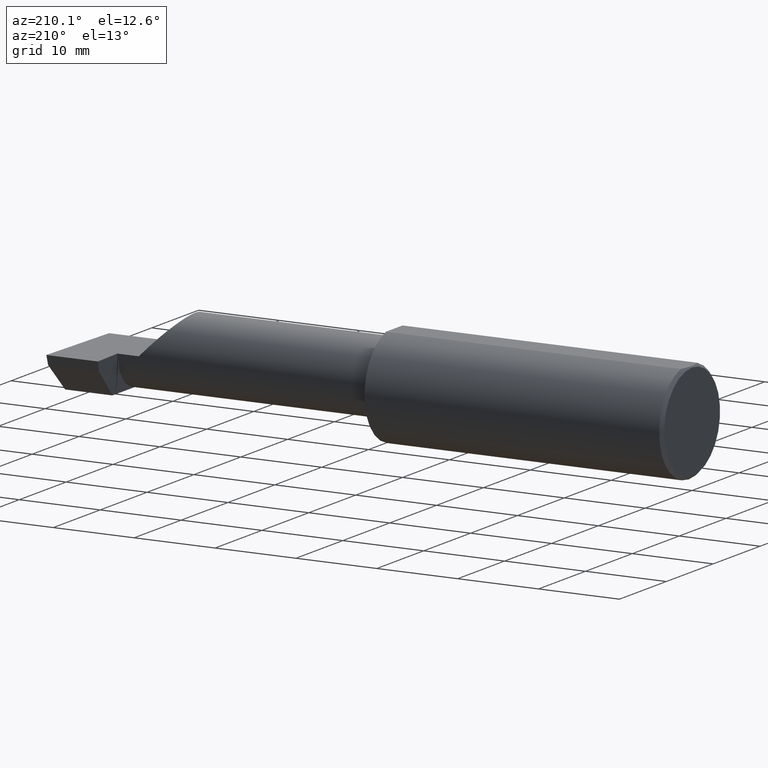
[diagram: clean part render]
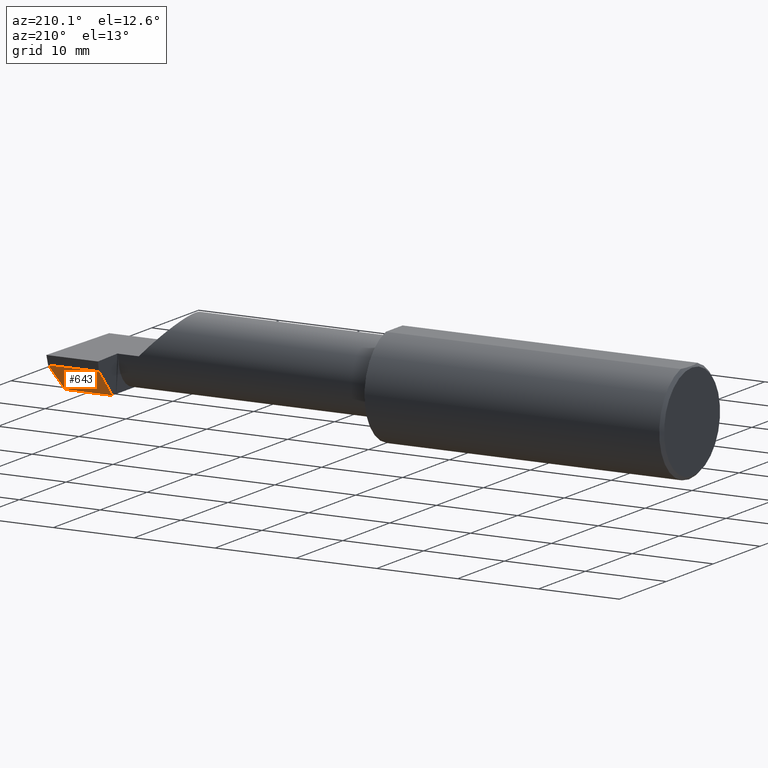
[diagram: same view with one face highlighted and labeled with its STEP entity id]
A machine part, auxiliary view. The second image highlights one B-rep face of the part: STEP entity #643.
In plain terms, the highlighted planar face has unit normal (0, -0.7071, 0.7071).
Its self-contained STEP definition (entity closure, byte-faithful):
#10 = EDGE_CURVE ( 'NONE', #555, #766, #223, .T. ) ;
#45 = CARTESIAN_POINT ( 'NONE',  ( 3.000000000000000444, 0.1058243371481678713, -0.1750000000000000167 ) ) ;
#95 = VERTEX_POINT ( 'NONE', #797 ) ;
#124 = CARTESIAN_POINT ( 'NONE',  ( 2.725000000000000089, 0.2348243371481683328, -0.04599999999999999922 ) ) ;
#130 = VECTOR ( 'NONE', #426, 39.37007874015748854 ) ;
#138 = EDGE_CURVE ( 'NONE', #766, #95, #188, .T. ) ;
#155 = LINE ( 'NONE', #591, #772 ) ;
#172 = CARTESIAN_POINT ( 'NONE',  ( 2.725000000000000089, 0.2348243371481683328, -0.04599999999999999922 ) ) ;
#183 = PLANE ( 'NONE',  #747 ) ;
#188 = LINE ( 'NONE', #730, #130 ) ;
#223 = LINE ( 'NONE', #172, #611 ) ;
#236 = CARTESIAN_POINT ( 'NONE',  ( 2.751037492458068279, 0.2348243371481683328, -0.04599999999999999922 ) ) ;
#249 = FACE_OUTER_BOUND ( 'NONE', #277, .T. ) ;
#268 = ORIENTED_EDGE ( 'NONE', *, *, #414, .F. ) ;
#270 = CARTESIAN_POINT ( 'NONE',  ( 2.760047045968828883, 0.1058243371481679407, -0.1749999999999999889 ) ) ;
#277 = EDGE_LOOP ( 'NONE', ( #441, #385, #268, #335 ) ) ;
#280 = VERTEX_POINT ( 'NONE', #270 ) ;
#335 = ORIENTED_EDGE ( 'NONE', *, *, #401, .T. ) ;
#379 = DIRECTION ( 'NONE',  ( 0.000000000000000000, -0.7071067811865486830, -0.7071067811865463515 ) ) ;
#385 = ORIENTED_EDGE ( 'NONE', *, *, #138, .T. ) ;
#401 = EDGE_CURVE ( 'NONE', #280, #555, #155, .T. ) ;
#414 = EDGE_CURVE ( 'NONE', #280, #95, #647, .T. ) ;
#426 = DIRECTION ( 'NONE',  ( -0.04317993108637931121, -0.7064472710512011977, -0.7064472710511988662 ) ) ;
#441 = ORIENTED_EDGE ( 'NONE', *, *, #10, .T. ) ;
#466 = DIRECTION ( 'NONE',  ( 1.000000000000000000, -0.000000000000000000, -0.000000000000000000 ) ) ;
#529 = VECTOR ( 'NONE', #636, 39.37007874015748143 ) ;
#555 = VERTEX_POINT ( 'NONE', #236 ) ;
#591 = CARTESIAN_POINT ( 'NONE',  ( 2.750974143662802796, 0.2357313737265644971, -0.04509296342160385579 ) ) ;
#611 = VECTOR ( 'NONE', #466, 39.37007874015748143 ) ;
#636 = DIRECTION ( 'NONE',  ( 1.000000000000000000, 0.000000000000000000, 0.000000000000000000 ) ) ;
#643 = ADVANCED_FACE ( 'NONE', ( #249 ), #183, .F. ) ;
#647 = LINE ( 'NONE', #45, #529 ) ;
#687 = CARTESIAN_POINT ( 'NONE',  ( 2.998364291748492949, 0.2348243371481683328, -0.04600000000000000616 ) ) ;
#730 = CARTESIAN_POINT ( 'NONE',  ( 2.997854602263704482, 0.2264855386240996193, -0.05433879852406866412 ) ) ;
#747 = AXIS2_PLACEMENT_3D ( 'NONE', #124, #752, #379 ) ;
#752 = DIRECTION ( 'NONE',  ( 0.000000000000000000, -0.7071067811865463515, 0.7071067811865486830 ) ) ;
#755 = DIRECTION ( 'NONE',  ( -0.04932528479609230021, 0.7062460676987121211, 0.7062460676987097896 ) ) ;
#766 = VERTEX_POINT ( 'NONE', #687 ) ;
#772 = VECTOR ( 'NONE', #755, 39.37007874015748143 ) ;
#797 = CARTESIAN_POINT ( 'NONE',  ( 2.990479469570817894, 0.1058243371481679268, -0.1749999999999999889 ) ) ;